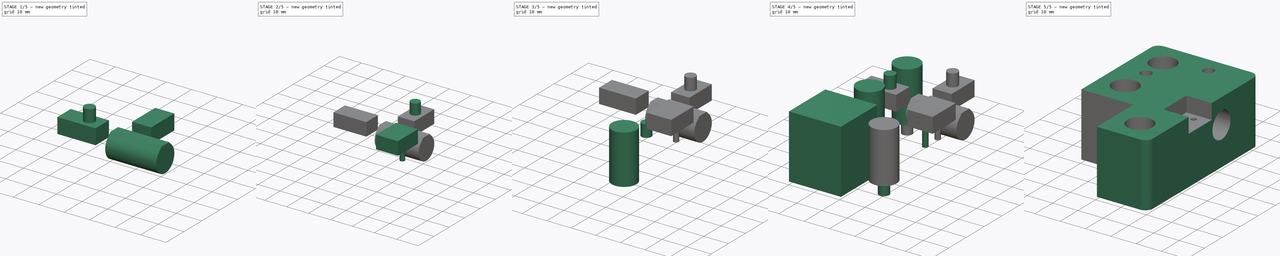
[diagram: build sequence overview — one tinted view per stage of 5, left to right]
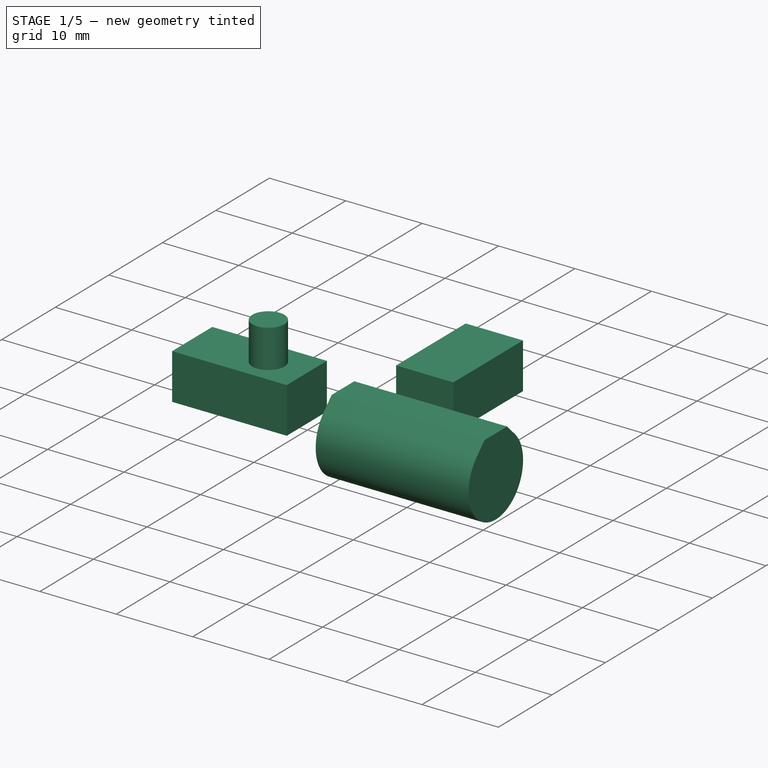
[diagram: stage 1 of 5 — iso view after this stage's code; geometry added in this stage tinted green]
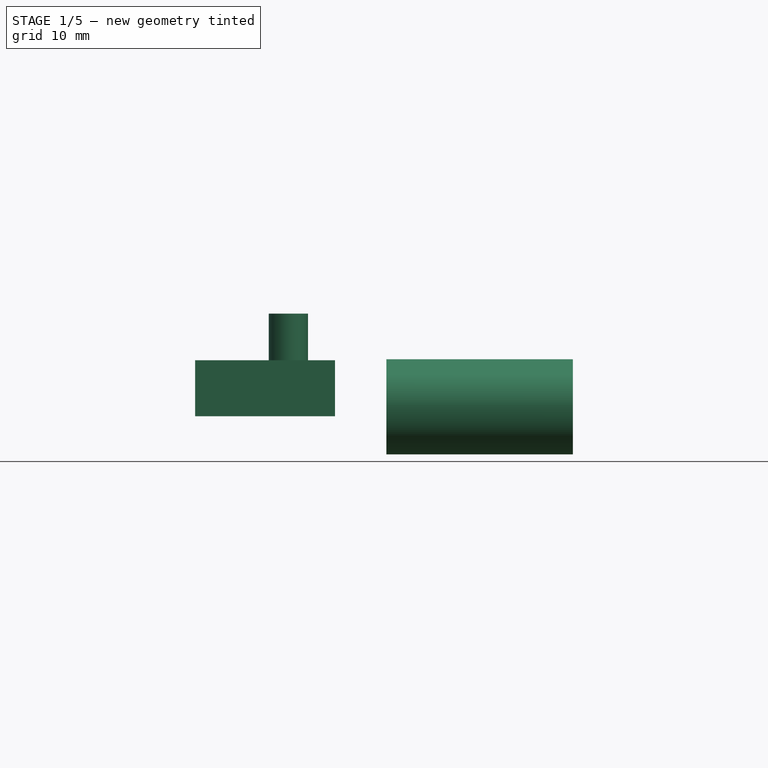
[diagram: stage 1 of 5 — front view after this stage's code; geometry added in this stage tinted green]
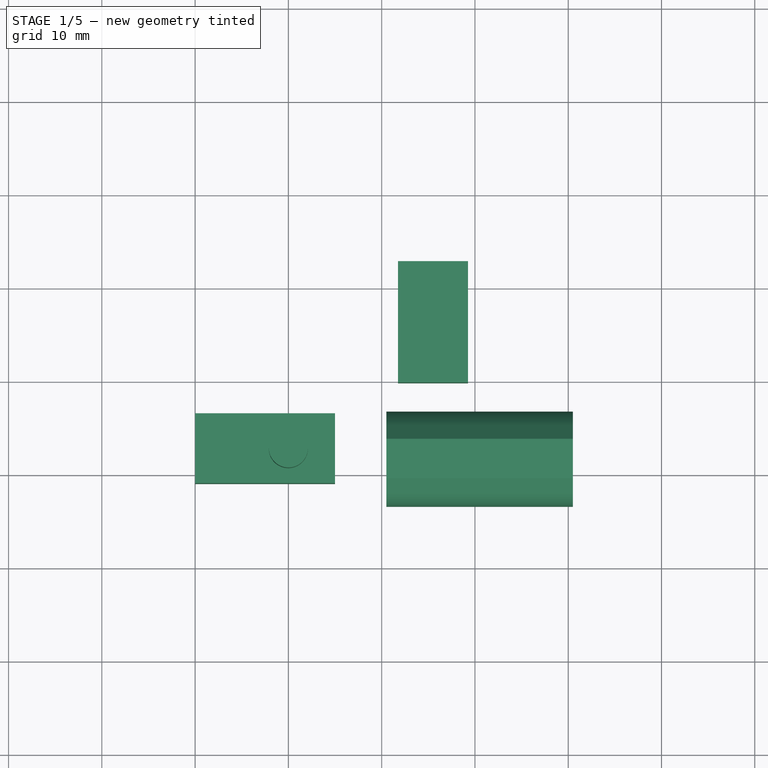
[diagram: stage 1 of 5 — top view after this stage's code; geometry added in this stage tinted green]
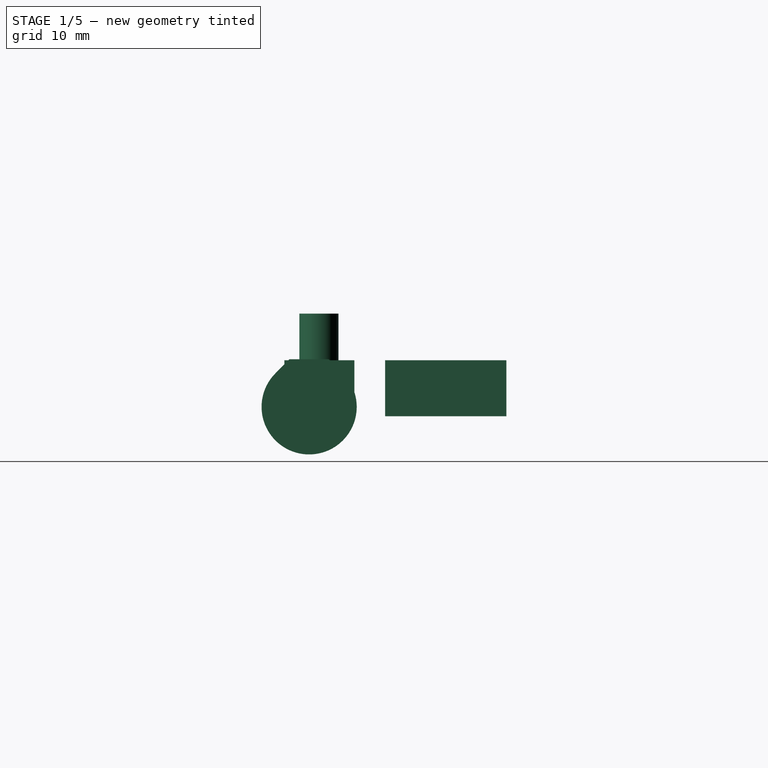
[diagram: stage 1 of 5 — right view after this stage's code; geometry added in this stage tinted green]
FCSTD DOCUMENT  (FreeCAD 0.15R4671 (Git))
Label: Yidler_right_cotas
License: All rights reserved
LicenseURL: http://en.wikipedia.org/wiki/All_rights_reserved
objects: Part::FeaturePython×6, Part::Box×5, Part::Cylinder×4, App::FeaturePython×4, Part::Cut×2, Part::MultiFuse×1, Sketcher::SketchObject×1, Part::Extrusion×1, Part::Fillet×1
note: 21 computed .brp shape members not serialized (recipe doc carries the construction recipe); baked Part::Feature solids carry a one-line shape summary decoded from their .brp

FEATURE [Part::Cylinder] Cylinder003  label="taladro4"
  Angle = 360
  Height = 5
  Placement = pos=(10,42.7,20) rot=(0,0,1;0rad)
  Radius = 2.1
FEATURE [Part::Box] Box003  label="hueco_taladro4"
  Height = 6
  Length = 15
  Placement = pos=(0,39,14) rot=(0,0,1;0rad)
  Width = 7.5
FEATURE [Part::Box] Box004  label="hueco_taladro4_2"
  Height = 6
  Length = 7.5
  Placement = pos=(21.75,49.8,14) rot=(0,0,1;0rad)
  Width = 13
FEATURE [Sketcher::SketchObject] Sketch  label="M10_repraphole"
  Placement = pos=(0,0,0) rot=(0.57735,0.57735,0.57735;2.0944rad)
  sketch-geometry (4):
    g0: ArcOfCircle CenterX=0 CenterY=0 CenterZ=0 NormalX=0 NormalY=0 NormalZ=1 Radius=5.1 StartAngle=2.35619 EndAngle=7.06858
    g1: LineSegment StartX=-3.60624 StartY=3.60625 StartZ=0 EndX=-2.11249 EndY=5.1 EndZ=0
    g2: LineSegment StartX=2.11249 StartY=5.1 StartZ=0 EndX=3.60624 EndY=3.60625 EndZ=0
    g3: LineSegment StartX=-2.11249 StartY=5.1 StartZ=0 EndX=2.11249 EndY=5.1 EndZ=0
  constraints (12):
    c: Coincident(g0,g-1)
    c: Radius(g0) = 5.1  'M10'
    c: Angle(g-1,g1) = 0.785398
    c: Horizontal(g3)
    c: Coincident(g3,g1)
    c: Coincident(g3,g2)
    c: Coincident(g0,g1)
    c: Coincident(g0,g2)
    c: DistanceY(g-1,g1) = 5.1  'M10radio'
    c: Angle(g2,g-1) = 0.785398
    c: Tangent(g2,g0)
    c: Tangent(g1,g0)
FEATURE [Part::Extrusion] Extrude  label="M10_repraphole_extrud"
  Base = -> Sketch
  Dir = (20,0,0)
  Placement = pos=(20.5,41.65,15) rot=(0,0,1;0rad)
  Solid = true
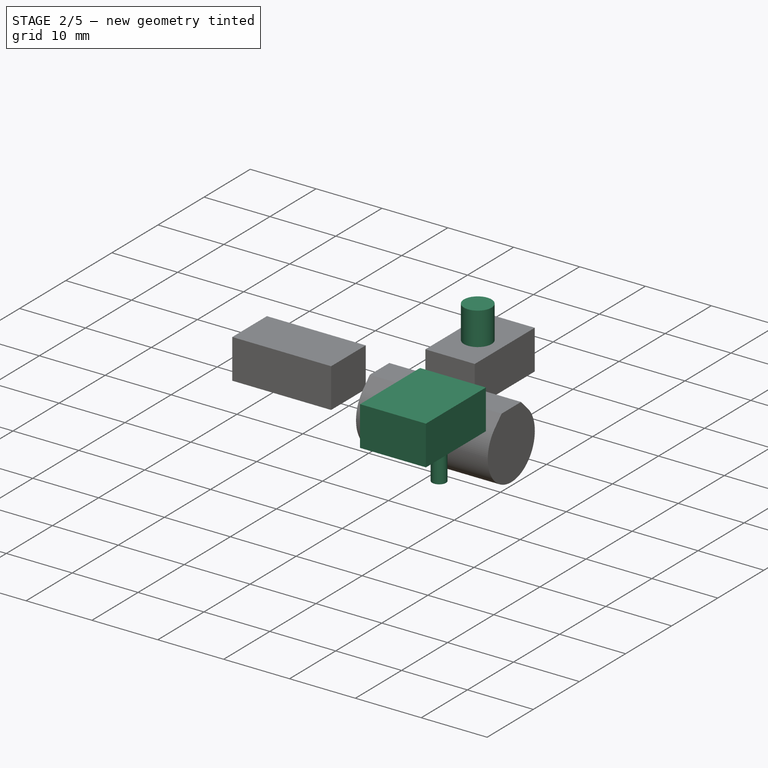
[diagram: stage 2 of 5 — iso view after this stage's code; geometry added in this stage tinted green]
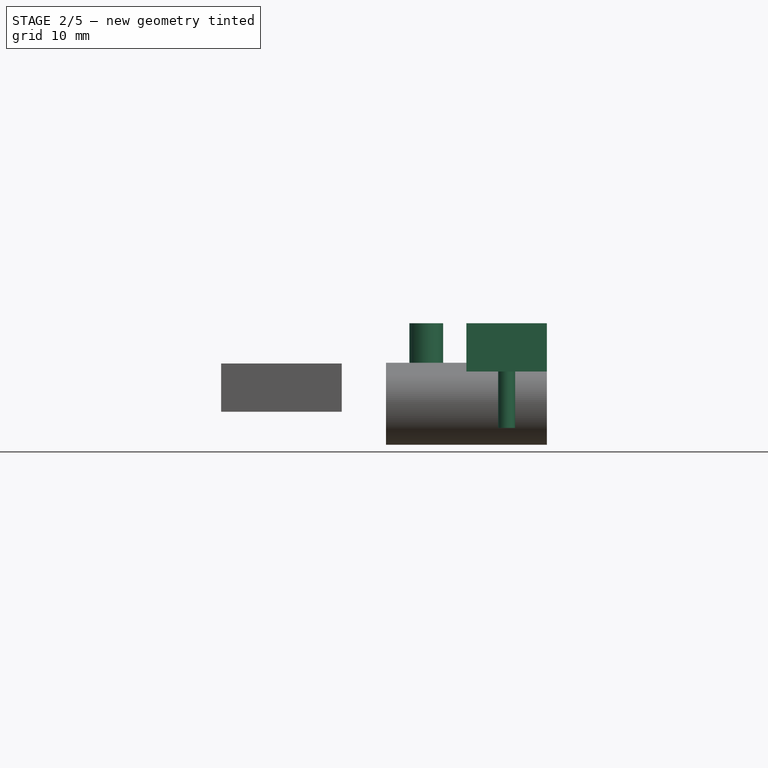
[diagram: stage 2 of 5 — front view after this stage's code; geometry added in this stage tinted green]
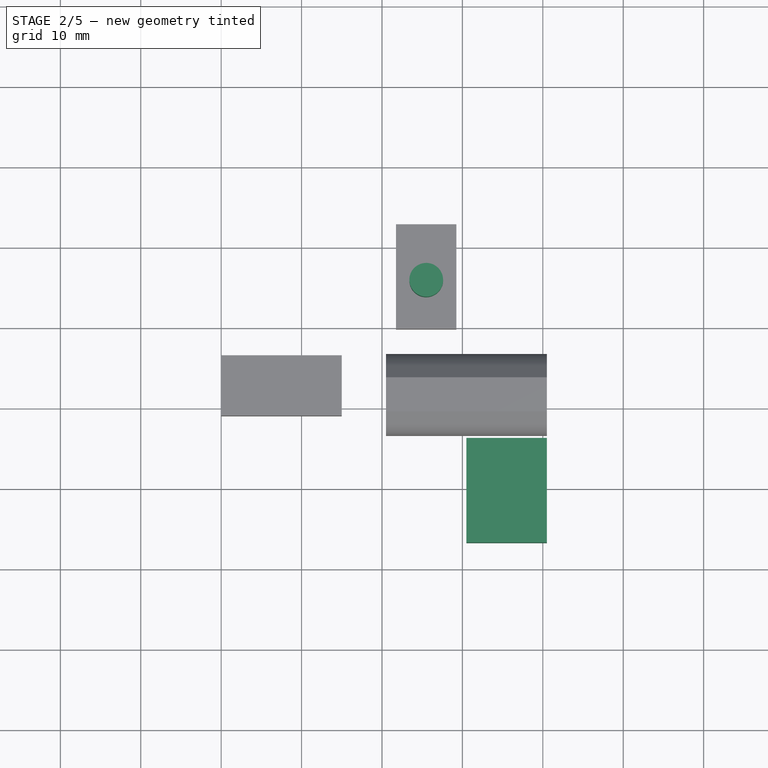
[diagram: stage 2 of 5 — top view after this stage's code; geometry added in this stage tinted green]
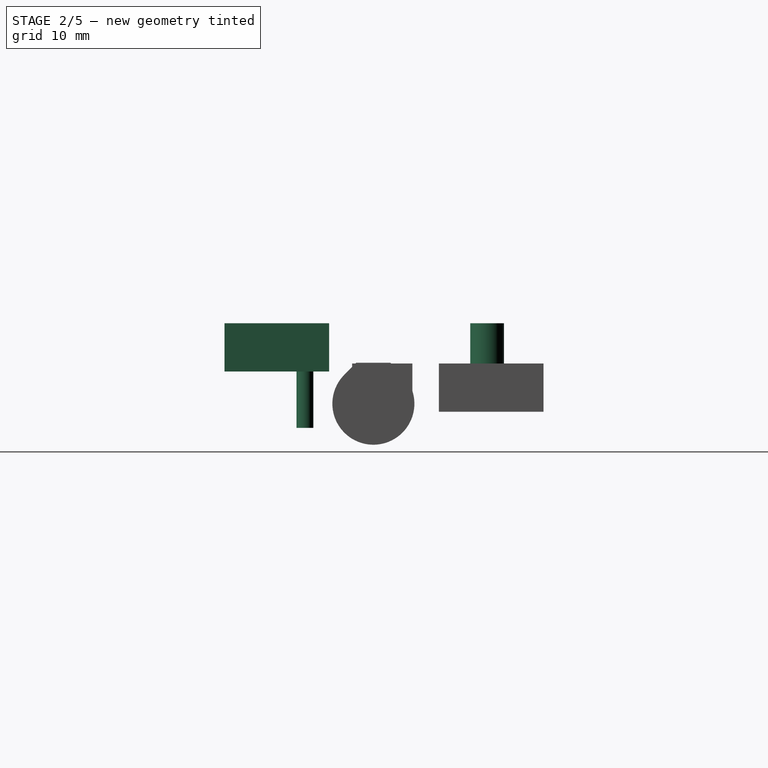
[diagram: stage 2 of 5 — right view after this stage's code; geometry added in this stage tinted green]
FEATURE [Part::Box] Box002  label="hueco_endstop"
  Height = 6
  Length = 10
  Placement = pos=(30.5,23.14,19) rot=(0,0,1;0rad)
  Width = 13
FEATURE [Part::Cylinder] Cylinder002  label="taladro_endstop"
  Angle = 360
  Height = 7
  Placement = pos=(35.5,26.14,12) rot=(0,0,1;0rad)
  Radius = 1.05
FEATURE [Part::FeaturePython] Clone004  label="taladro_endstop_2"  # Draft clone (typed FeaturePython)
  Objects = -> [Cylinder002]
  Placement = pos=(35.5,33.14,12) rot=(0,0,1;0rad)
  Scale = (1,1,1)
FEATURE [Part::FeaturePython] Clone005  label="taladro4_2"  # Draft clone (typed FeaturePython)
  Objects = -> [Cylinder003]
  Placement = pos=(25.5,55.8,20) rot=(0,0,1;0rad)
  Scale = (1,1,1)
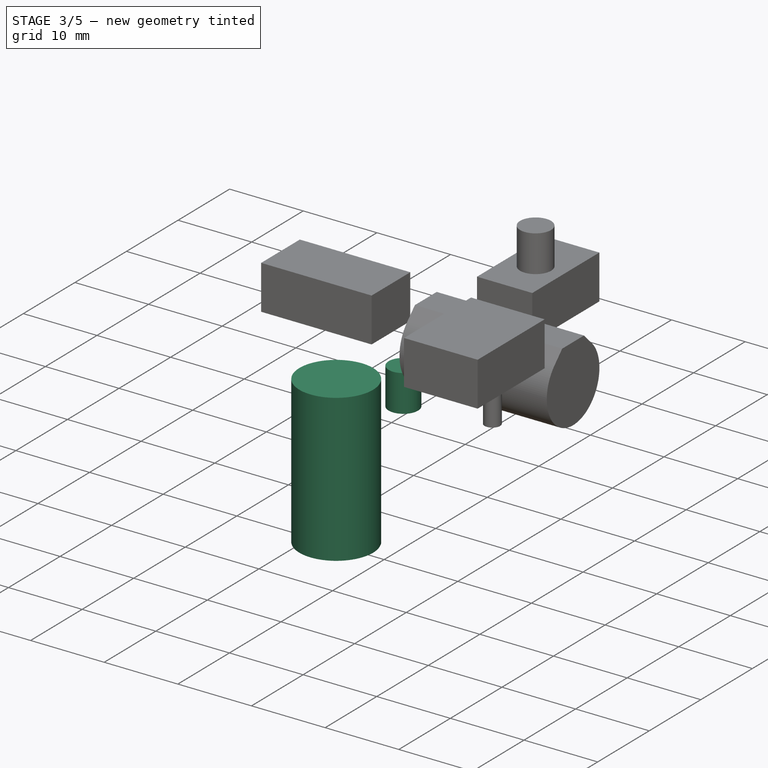
[diagram: stage 3 of 5 — iso view after this stage's code; geometry added in this stage tinted green]
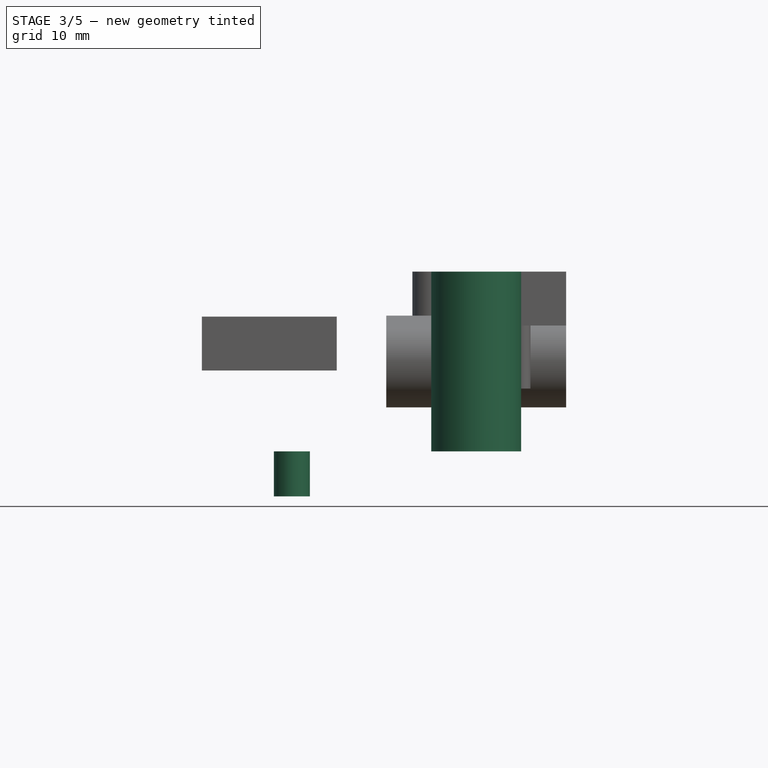
[diagram: stage 3 of 5 — front view after this stage's code; geometry added in this stage tinted green]
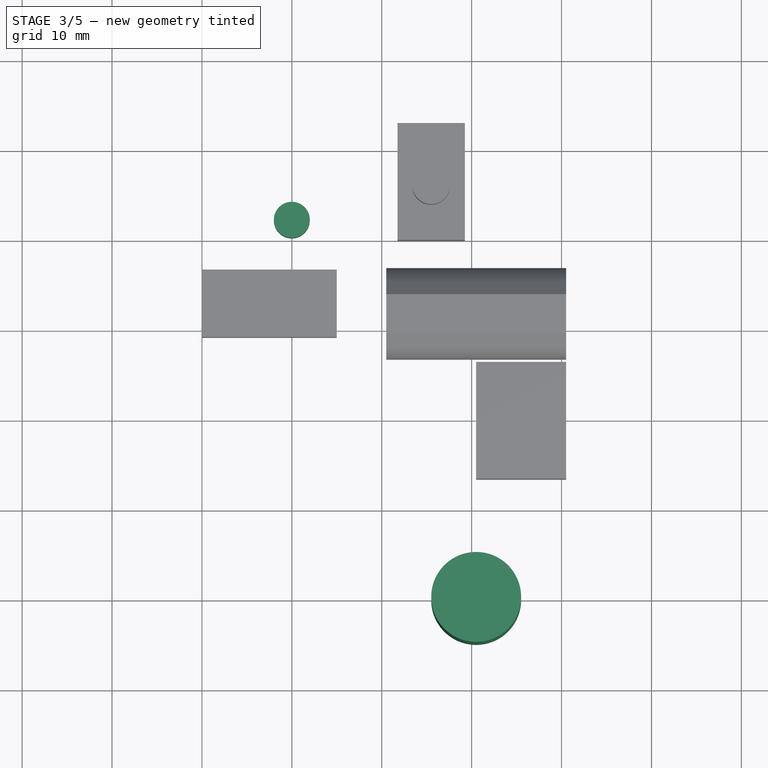
[diagram: stage 3 of 5 — top view after this stage's code; geometry added in this stage tinted green]
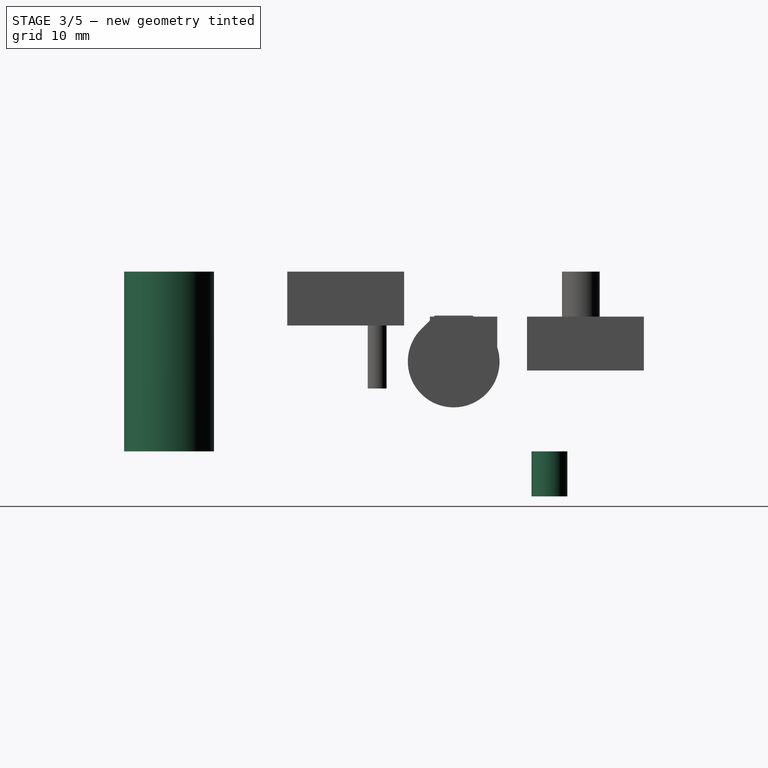
[diagram: stage 3 of 5 — right view after this stage's code; geometry added in this stage tinted green]
FEATURE [Part::Cylinder] Cylinder  label="taladro10"
  Angle = 360
  Height = 20
  Placement = pos=(30.5,10,5) rot=(0,0,1;0rad)
  Radius = 5
FEATURE [Part::Cylinder] Cylinder001  label="taladro5"
  Angle = 360
  Height = 5
  Placement = pos=(30.5,10,0) rot=(0,0,1;0rad)
  Radius = 2
FEATURE [Part::FeaturePython] Clone002  label="taladro5_2"  # Draft clone (typed FeaturePython)
  Objects = -> [Cylinder001]
  Placement = pos=(10,31,0) rot=(0,0,1;0rad)
  Scale = (1,1,1)
FEATURE [Part::FeaturePython] Clone003  label="taladro5_3"  # Draft clone (typed FeaturePython)
  Objects = -> [Clone002]
  Placement = pos=(10,52.3,0) rot=(0,0,1;0rad)
  Scale = (1,1,1)
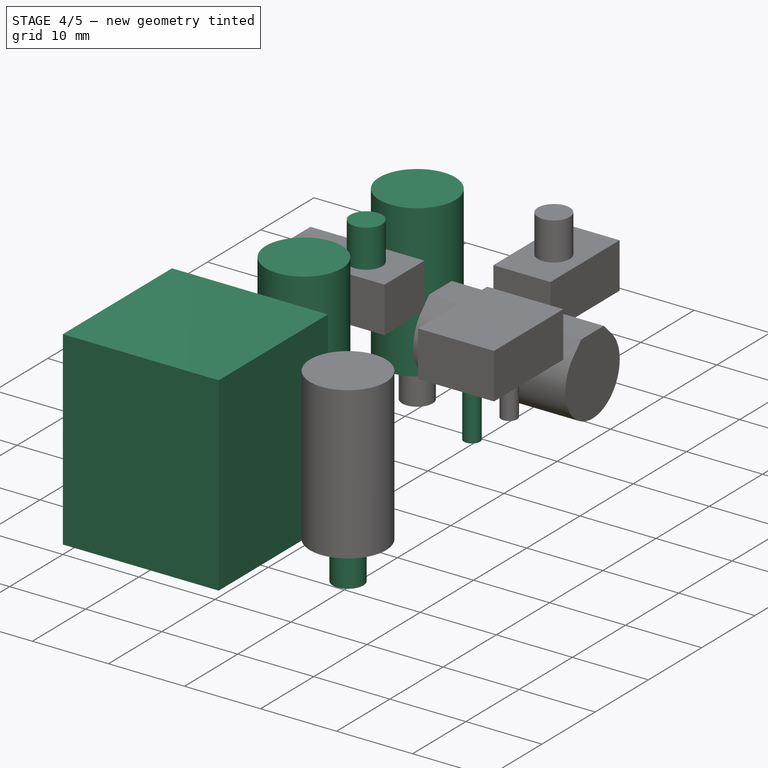
[diagram: stage 4 of 5 — iso view after this stage's code; geometry added in this stage tinted green]
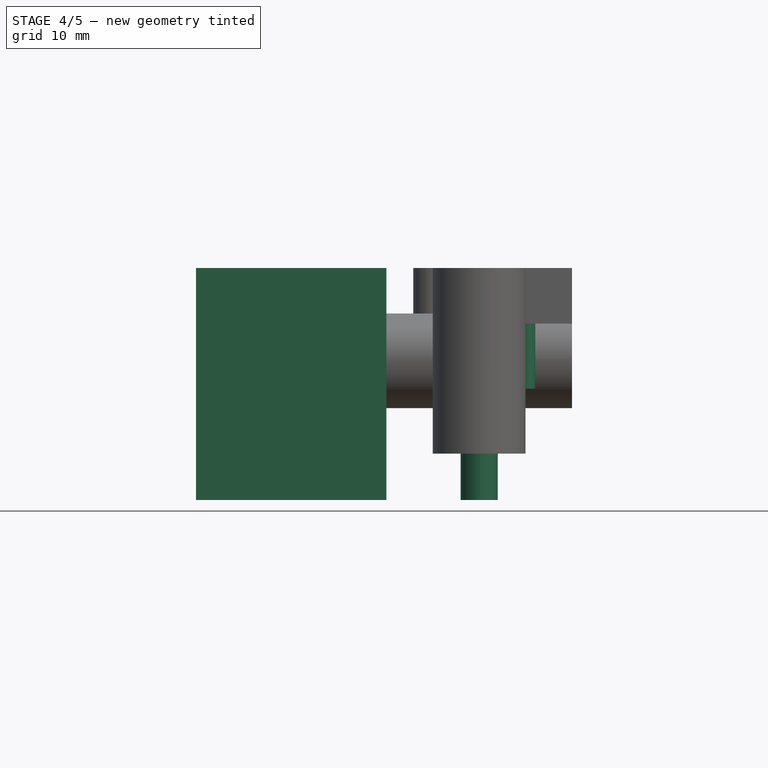
[diagram: stage 4 of 5 — front view after this stage's code; geometry added in this stage tinted green]
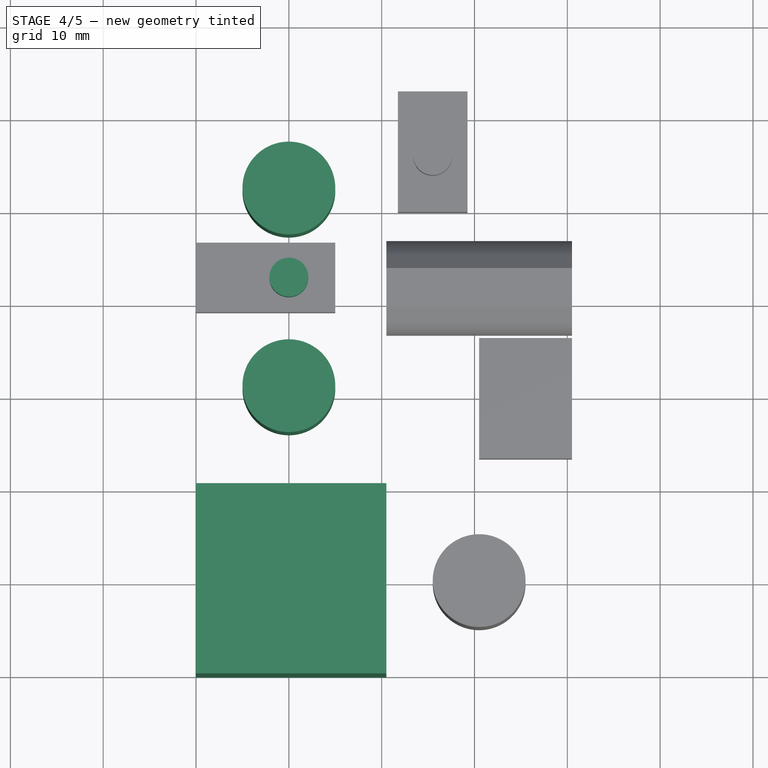
[diagram: stage 4 of 5 — top view after this stage's code; geometry added in this stage tinted green]
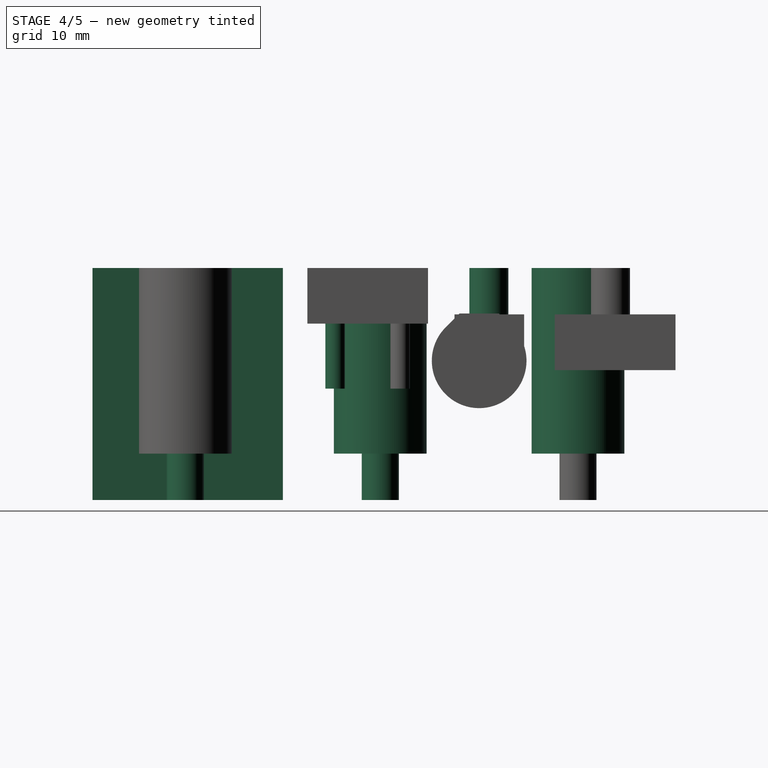
[diagram: stage 4 of 5 — right view after this stage's code; geometry added in this stage tinted green]
FEATURE [Part::Box] Box001  label="hueco_ejez"
  Height = 25
  Length = 20.5
  Width = 20.5
FEATURE [Part::FeaturePython] Clone  label="taladro10_2"  # Draft clone (typed FeaturePython)
  Objects = -> [Cylinder]
  Placement = pos=(10,31,5) rot=(0,0,1;0rad)
  Scale = (1,1,1)
FEATURE [Part::FeaturePython] Clone001  label="taladro10_3"  # Draft clone (typed FeaturePython)
  Objects = -> [Clone]
  Placement = pos=(10,52.3,5) rot=(0,0,1;0rad)
  Scale = (1,1,1)
FEATURE [Part::MultiFuse] Fusion  label="huecos"
  Shapes = -> [Box004,Box003,Clone005,Cylinder003,Clone004,Cylinder002,Box002,Clone003,Clone002,Cylinder001,Clone001,Clone,Cylinder,Box001]
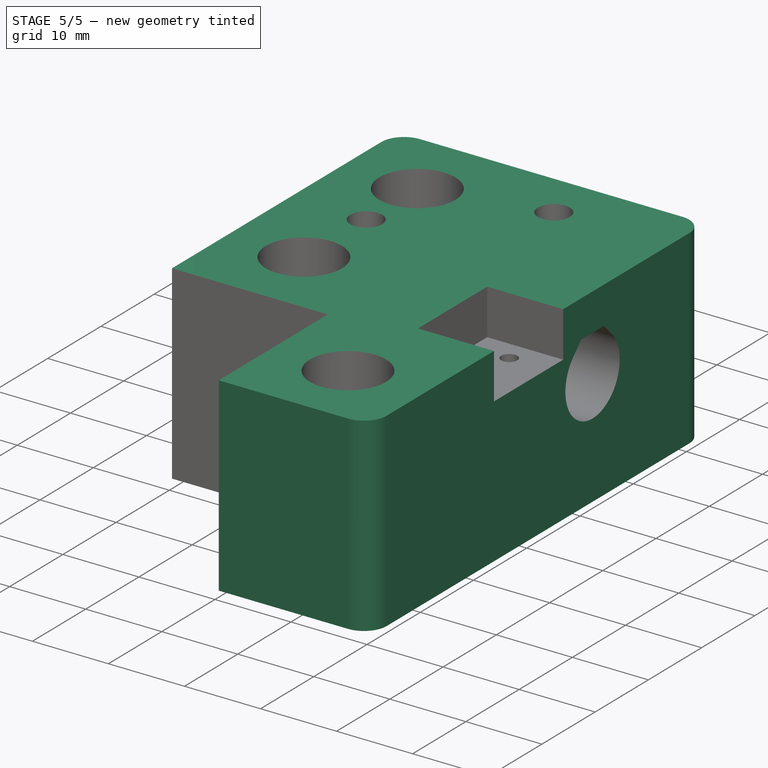
[diagram: stage 5 of 5 — iso view after this stage's code; geometry added in this stage tinted green]
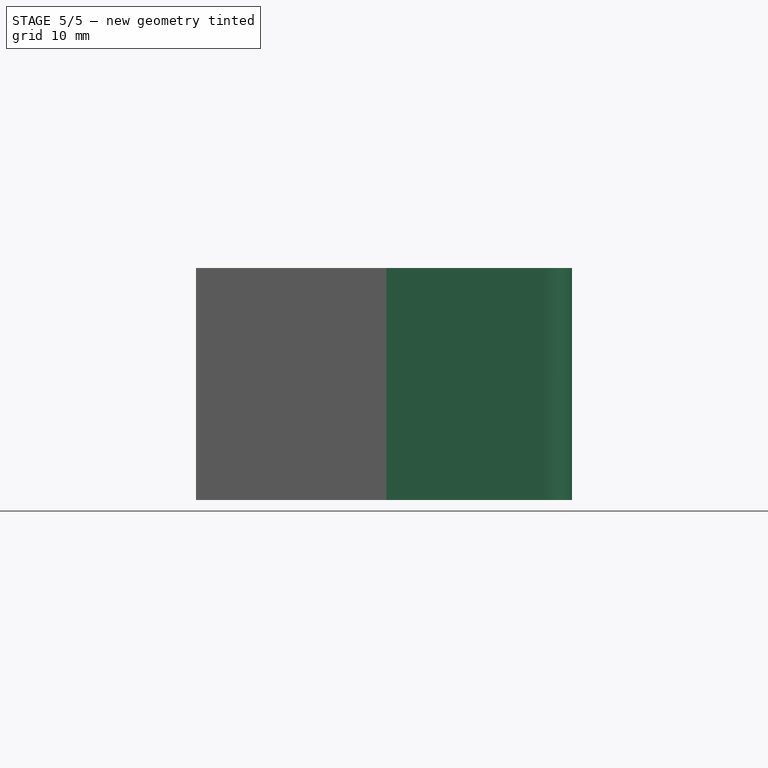
[diagram: stage 5 of 5 — front view after this stage's code; geometry added in this stage tinted green]
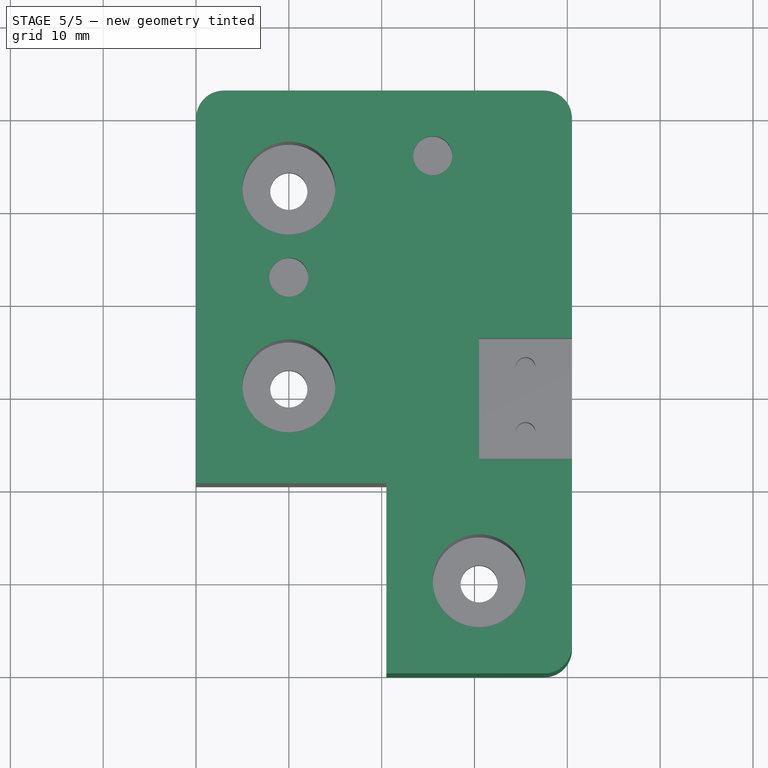
[diagram: stage 5 of 5 — top view after this stage's code; geometry added in this stage tinted green]
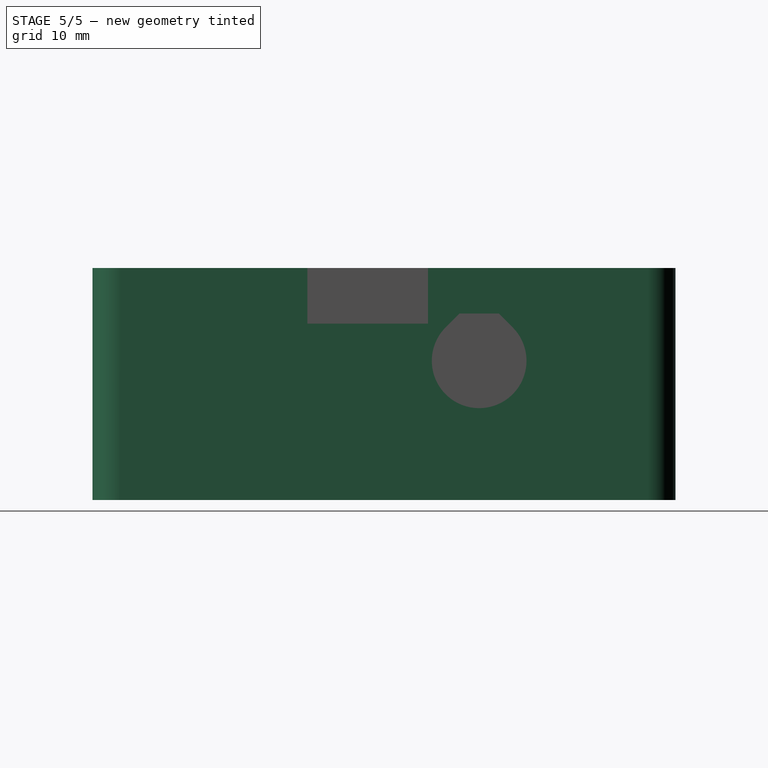
[diagram: stage 5 of 5 — right view after this stage's code; geometry added in this stage tinted green]
FEATURE [Part::Box] Box  label="cubo_base"
  Height = 25
  Length = 40.5
  Width = 62.8
FEATURE [Part::Cut] Cut  label="Yidler_right_ahuecado"
  Base = -> Box
  Tool = -> Fusion
FEATURE [Part::Cut] Cut001  label="Yidler_right_ahuecado2"
  Base = -> Cut
  Tool = -> Extrude
FEATURE [Part::Fillet] Fillet  label="Yidler_right_fileteado"
  Base = -> Cut001
  Edges = 3 edges r=3: [Edge3,Edge26,Edge47]
FEATURE [App::FeaturePython] Dimension  # Draft dimension (typed FeaturePython)
  Dimline = (30.5,-22.5763,18.5521)
  Direction = (0,0,0)
  Distance = 20
  End = (30.5,10,5)
  Normal = (1,0,0)
  Start = (30.5,10,25)
FEATURE [App::FeaturePython] Dimension001  # Draft dimension (typed FeaturePython)
  Dimline = (29.3684,-22.2399,25)
  Direction = (0,0,0)
  Distance = 9.8238
  End = (25.6762,10,25)
  Normal = (0,0,1)
  Start = (35.5,10,25)
FEATURE [App::FeaturePython] Dimension002  # Draft dimension (typed FeaturePython)
  Dimline = (30.5,-22.5763,5)
  Direction = (0,0,0)
  Distance = 3.44641
  End = (29.0536,10,5)
  Normal = (0,0,1)
  Start = (32.5,10,5)
FEATURE [App::FeaturePython] Dimension003  # Draft dimension (typed FeaturePython)
  Dimline = (30.5,-22.527,-2.67148)
  Direction = (0,0,0)
  Distance = 5
  End = (30.5,10,0)
  Normal = (1,0,0)
  Start = (30.5,10,5)
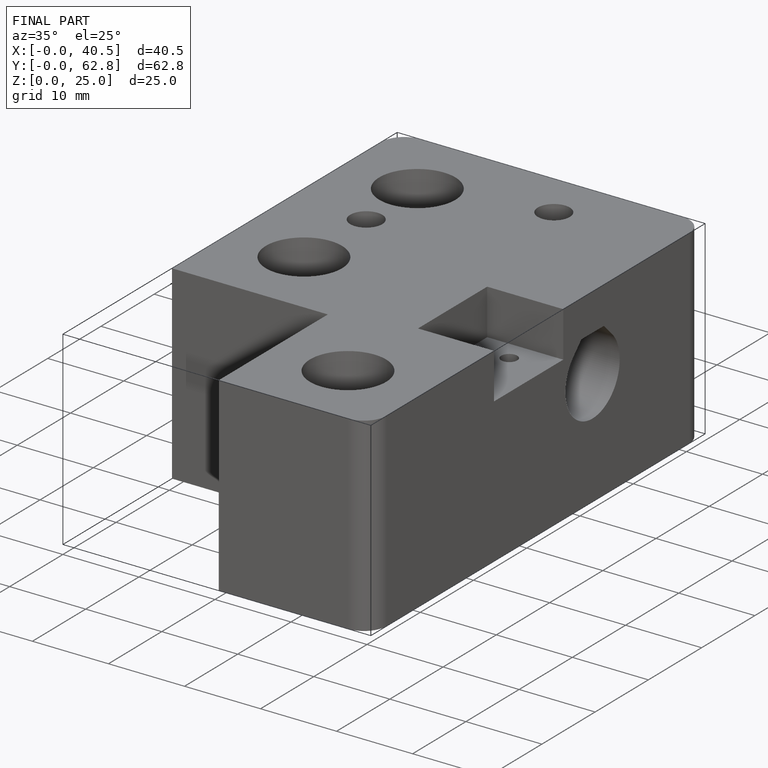
[diagram: finished part — iso view with bounding-box wireframe]
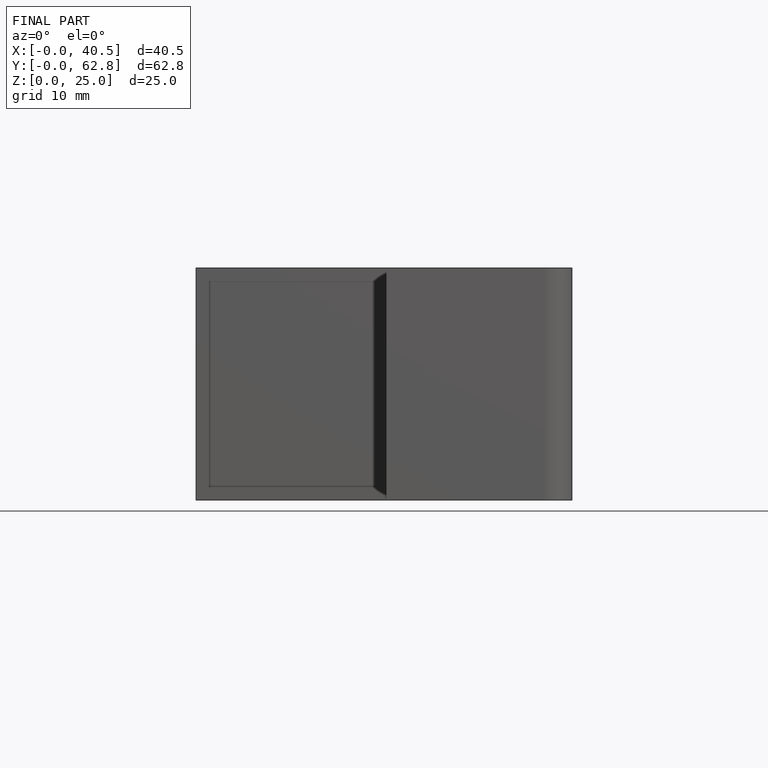
[diagram: finished part — front view with bounding-box wireframe]
